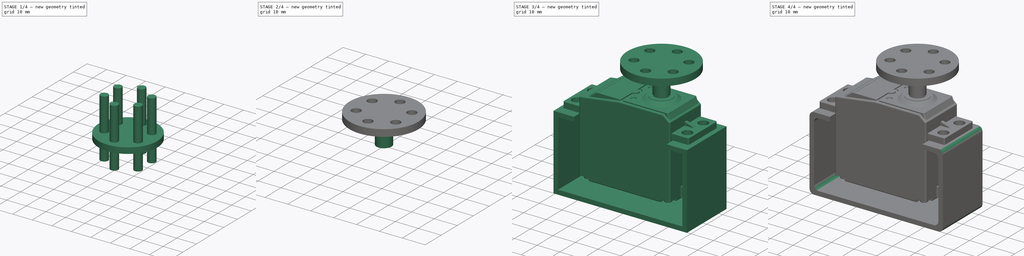
[diagram: build sequence overview — one tinted view per stage of 4, left to right]
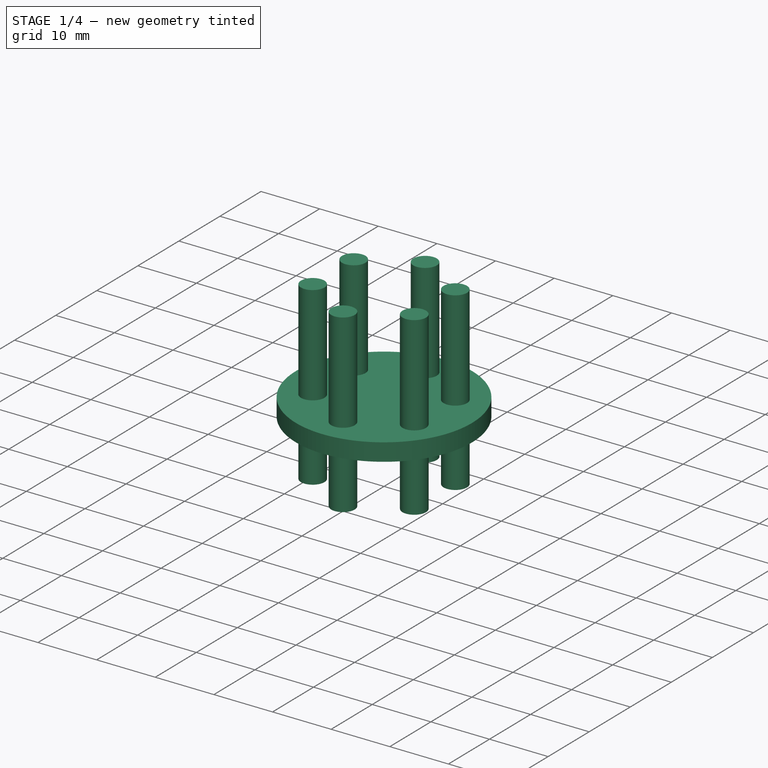
[diagram: stage 1 of 4 — iso view after this stage's code; geometry added in this stage tinted green]
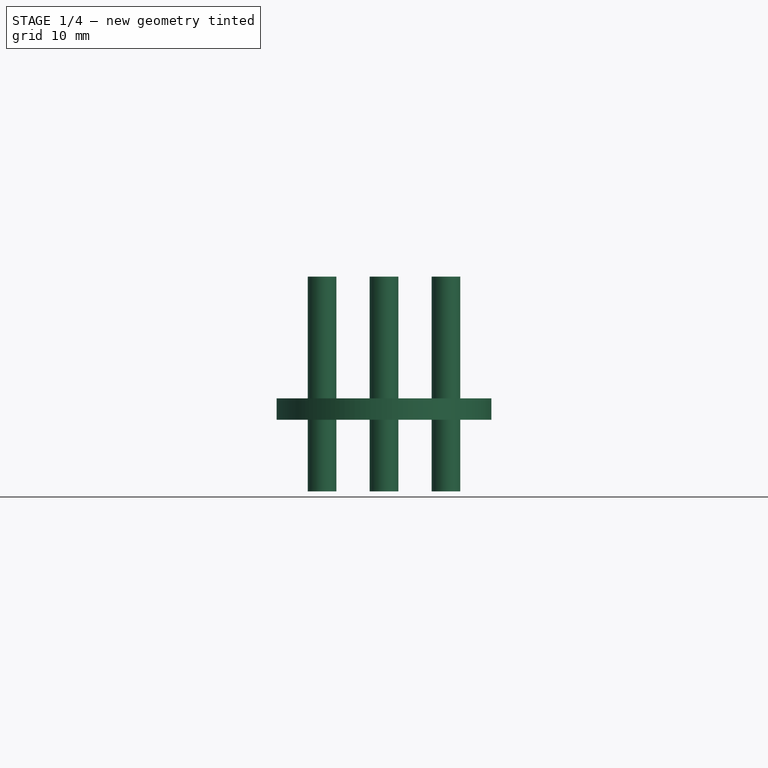
[diagram: stage 1 of 4 — front view after this stage's code; geometry added in this stage tinted green]
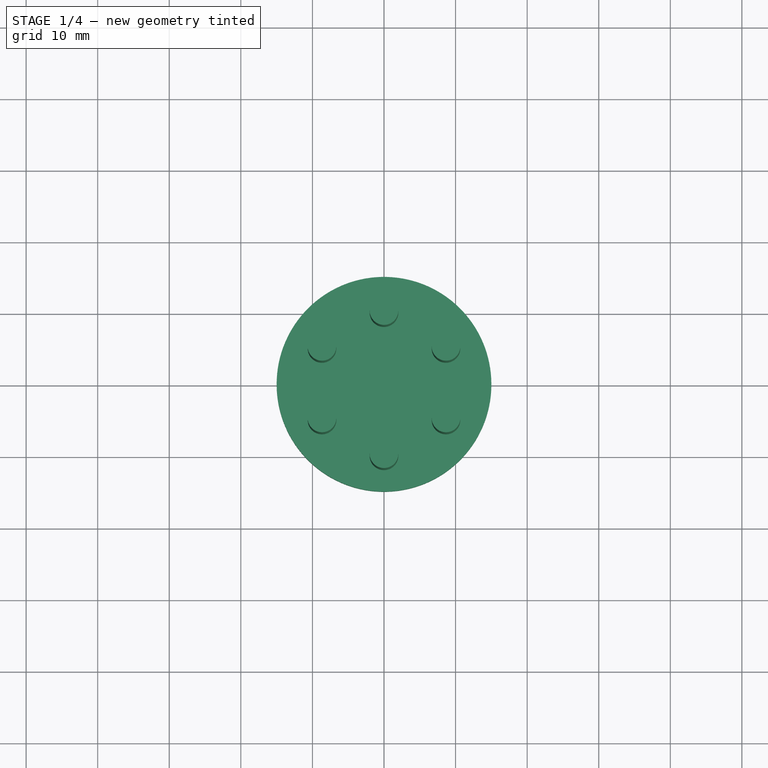
[diagram: stage 1 of 4 — top view after this stage's code; geometry added in this stage tinted green]
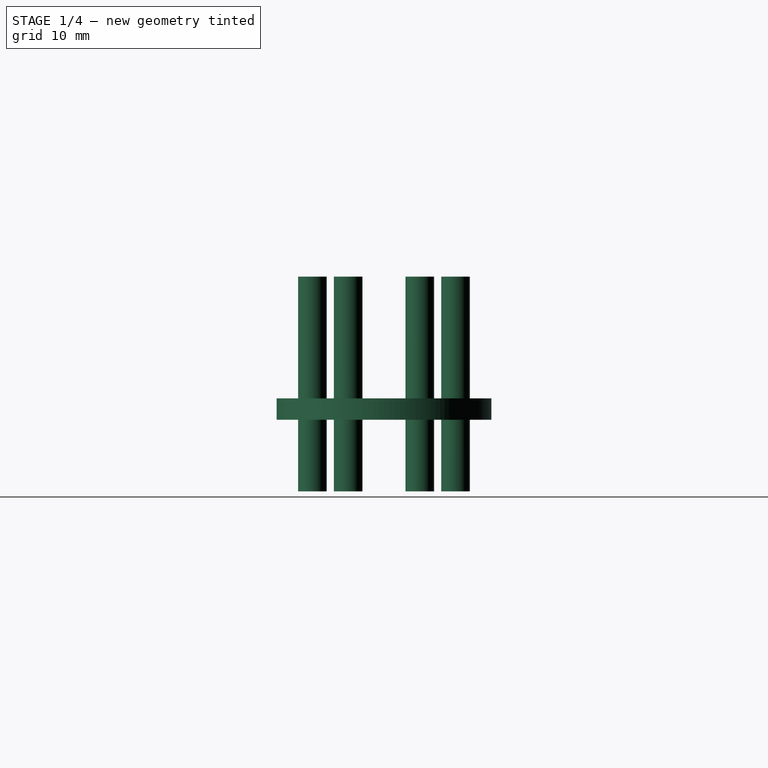
[diagram: stage 1 of 4 — right view after this stage's code; geometry added in this stage tinted green]
FCSTD DOCUMENT  (FreeCAD 0.17R7965 (Git))
Label: ConnectorRivet-Flat
License: All rights reserved
LicenseURL: http://en.wikipedia.org/wiki/All_rights_reserved
objects: Sketcher::SketchObject×4, Part::Extrusion×4, Part::FeaturePython×4, Part::Feature×1, Part::Cut×1, PartDesign::Body×1, Part::Fillet×1
note: 16 computed .brp shape members not serialized (recipe doc carries the construction recipe); baked Part::Feature solids carry a one-line shape summary decoded from their .brp

FEATURE [Part::Feature] Part__Feature  label="Servo-Futaba3003-final"
  Placement = pos=(-9.45,7.232e-09,0) rot=(0,0,1;0rad)
  shape: bbox 55.5 x 20 x 41.74 mm, 365 faces (baked)
FEATURE [Sketcher::SketchObject] Sketch001
  MapMode = 5
  Support = -> [XY_Plane]
  sketch-geometry (1):
    g0: Circle CenterX=0 CenterY=0 CenterZ=0 NormalX=0 NormalY=0 NormalZ=1 Radius=15
  constraints (2):
    c: Coincident(g0,g-1)
    c: Radius(g0) = 15
FEATURE [Part::Extrusion] Extrude002
  Base = -> Sketch001
  Dir = (0,0,3)
  Placement = pos=(0,0,10) rot=(0,0,1;0rad)
  Solid = true
FEATURE [Sketcher::SketchObject] Sketch002
  MapMode = 5
  Support = -> [XY_Plane]
  sketch-geometry (1):
    g0: Circle CenterX=0 CenterY=-10 CenterZ=0 NormalX=0 NormalY=0 NormalZ=1 Radius=2
  constraints (3):
    c: Radius(g0) = 2
    c: DistanceY(g-1,g0) = -10
    c: PointOnObject(g0,g-2)
FEATURE [Part::FeaturePython] Array  # Draft array (typed FeaturePython)
  Angle = 360
  ArrayType = 1
  Axis = (0,0,1)
  Base = -> Sketch002
  Center = (0,0,0)
  Fuse = false
  IntervalAxis = (0,0,0)
  IntervalX = (1,0,0)
  IntervalY = (0,1,0)
  IntervalZ = (0,0,0)
  NumberPolar = 6
  NumberX = 2
  NumberY = 2
  NumberZ = 1
FEATURE [Part::Extrusion] Extrude
  Base = -> Array
  Dir = (0,0,30)
  Solid = true
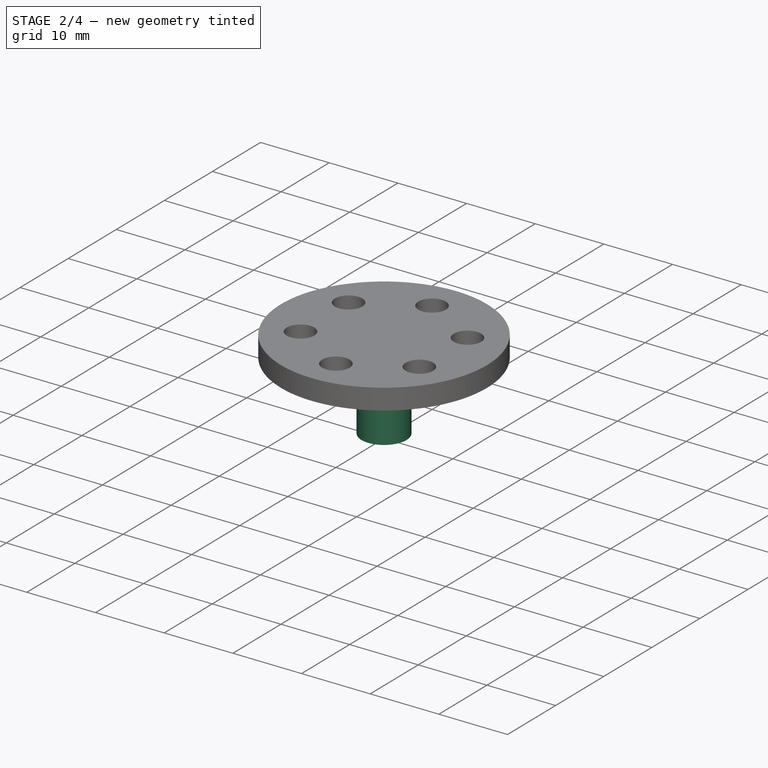
[diagram: stage 2 of 4 — iso view after this stage's code; geometry added in this stage tinted green]
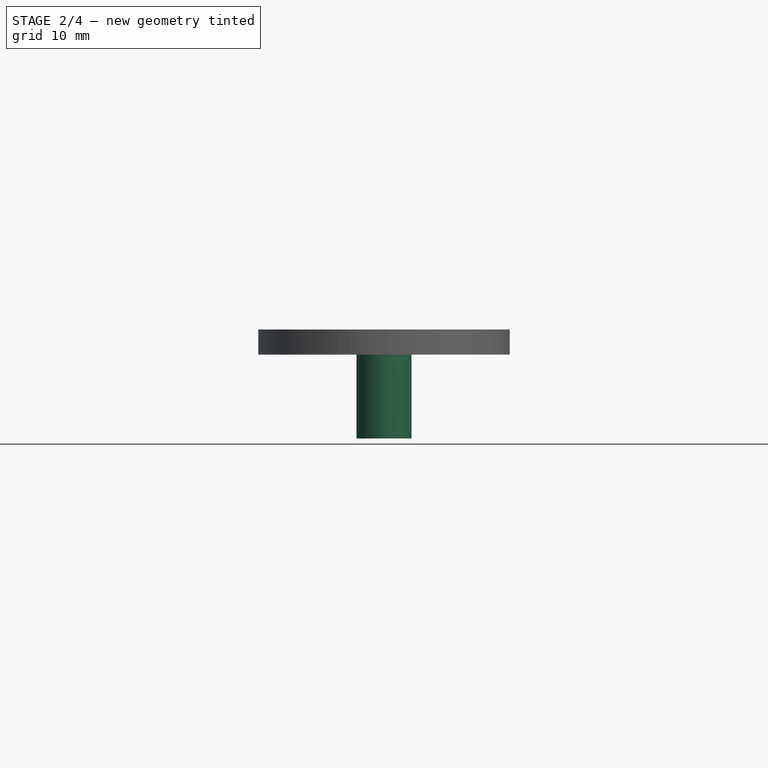
[diagram: stage 2 of 4 — front view after this stage's code; geometry added in this stage tinted green]
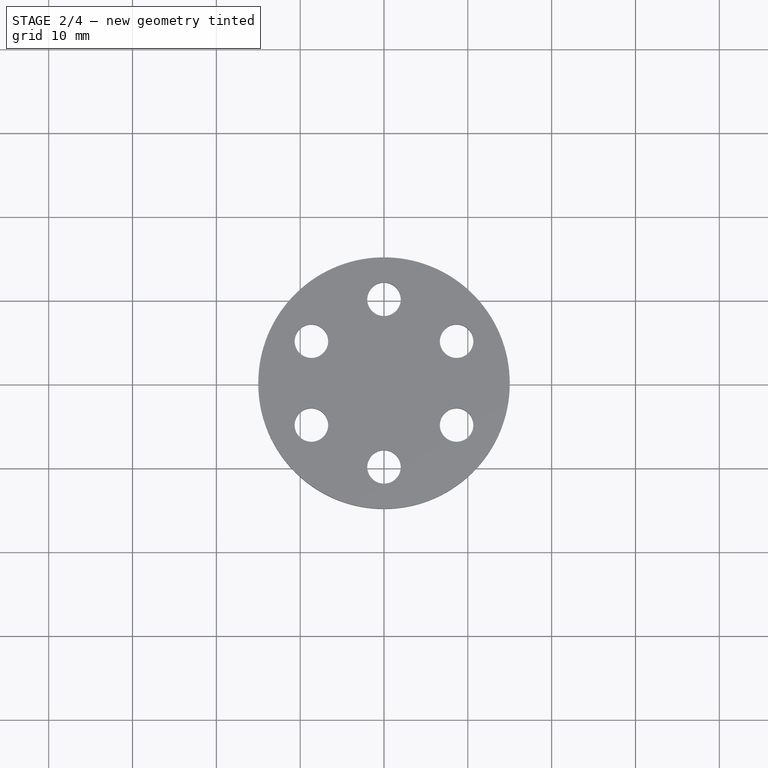
[diagram: stage 2 of 4 — top view after this stage's code; geometry added in this stage tinted green]
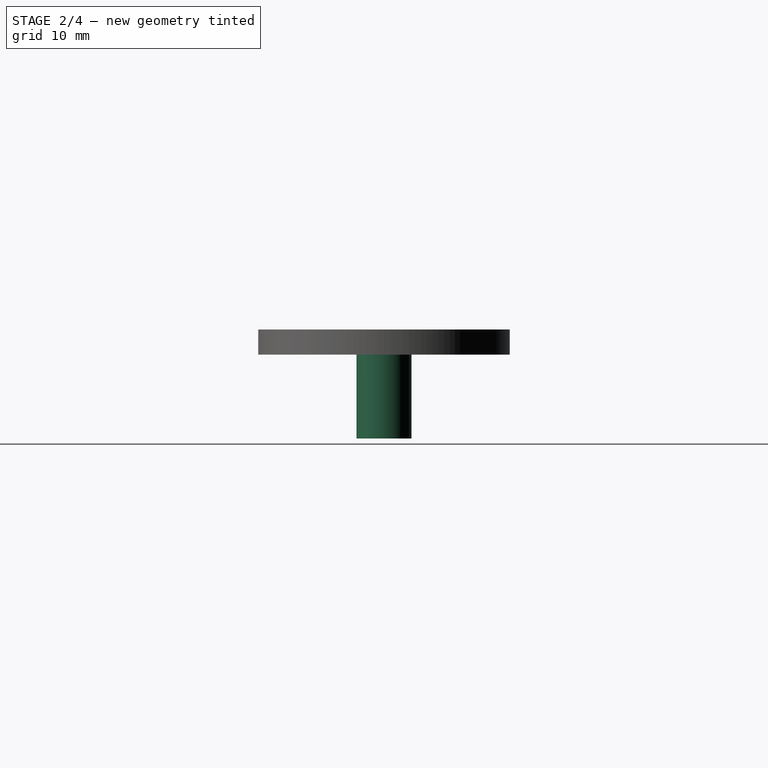
[diagram: stage 2 of 4 — right view after this stage's code; geometry added in this stage tinted green]
FEATURE [Sketcher::SketchObject] Sketch
  MapMode = 5
  Support = -> [XY_Plane]
  sketch-geometry (1):
    g0: Circle CenterX=0 CenterY=0 CenterZ=0 NormalX=0 NormalY=0 NormalZ=1 Radius=3.27463
  constraints (1):
    c: Coincident(g0,g-1)
FEATURE [Part::Extrusion] Extrude003
  Base = -> Sketch
  Dir = (0,0,10)
  Solid = true
FEATURE [Part::Cut] Cut
  Base = -> Extrude002
  Tool = -> Extrude
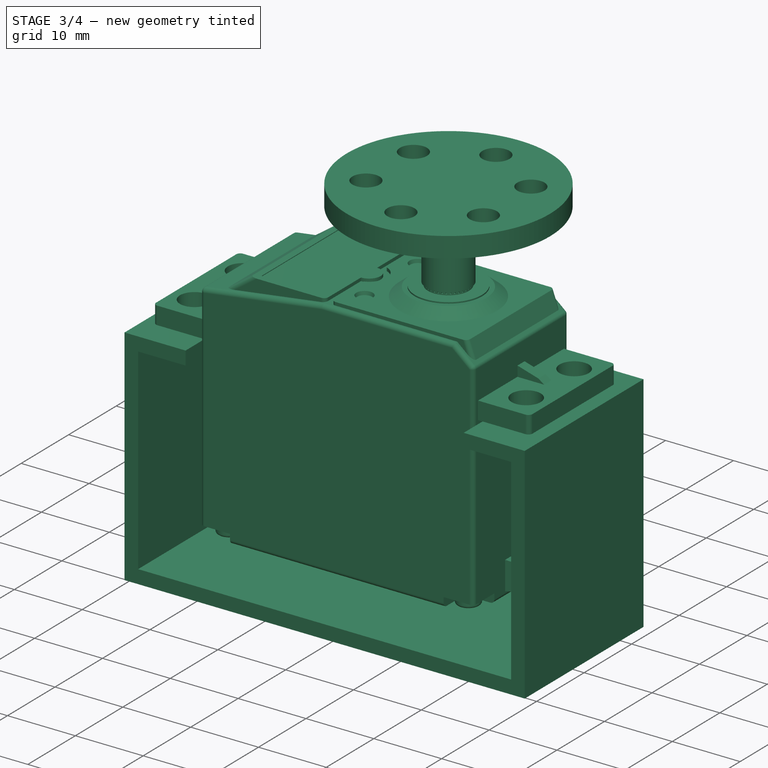
[diagram: stage 3 of 4 — iso view after this stage's code; geometry added in this stage tinted green]
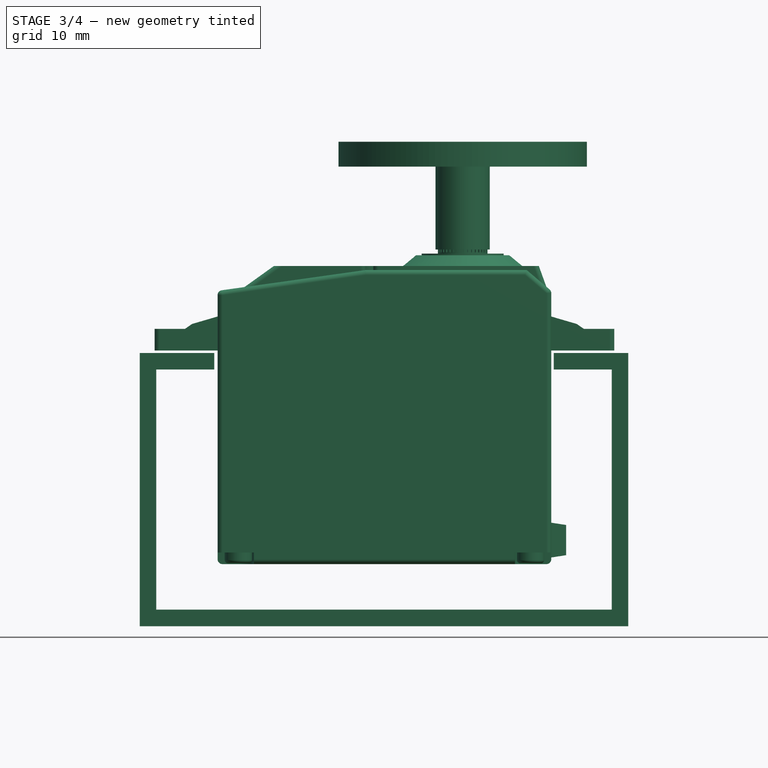
[diagram: stage 3 of 4 — front view after this stage's code; geometry added in this stage tinted green]
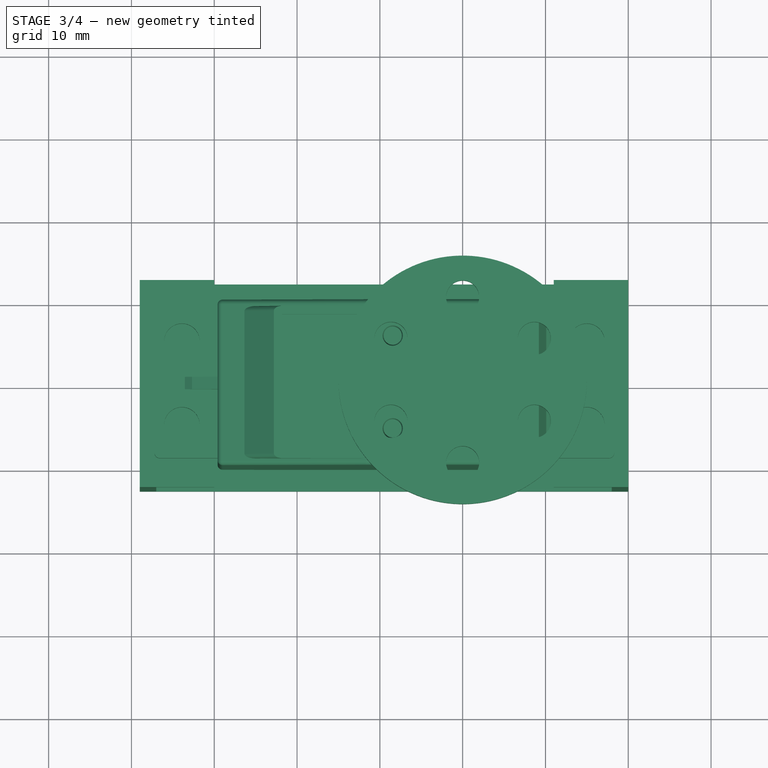
[diagram: stage 3 of 4 — top view after this stage's code; geometry added in this stage tinted green]
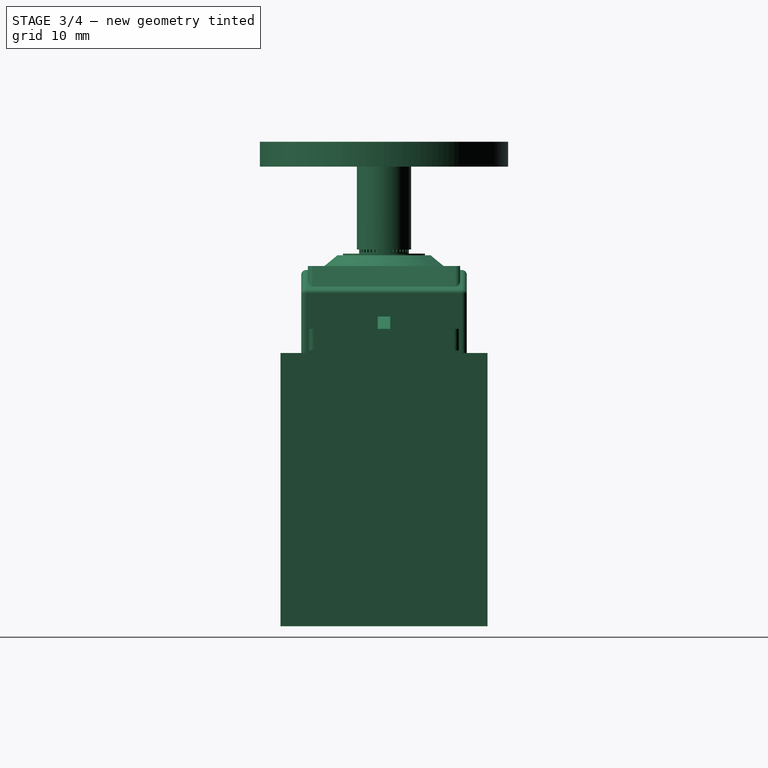
[diagram: stage 3 of 4 — right view after this stage's code; geometry added in this stage tinted green]
FEATURE [Part::FeaturePython] Connect  label="ServoConnector"  # WARN: FeaturePython — macro-defined, semantics opaque (R4)
  Base = -> Cut
  Mode = 1
  Placement = pos=(0,0,38) rot=(0,0,1;0rad)
  Tool = -> Extrude003
FEATURE [Sketcher::SketchObject] Sketch003
  MapMode = 5
  Placement = pos=(0,0,0) rot=(1,0,0;1.5708rad)
  Support = -> [XZ_Plane]
  sketch-geometry (12):
    g0: LineSegment StartX=-30 StartY=25.5 StartZ=0 EndX=-39 EndY=25.5 EndZ=0
    g1: LineSegment StartX=-39 StartY=25.5 StartZ=0 EndX=-39 EndY=-7.5 EndZ=0
    g2: LineSegment StartX=-39 StartY=-7.5 StartZ=0 EndX=20 EndY=-7.5 EndZ=0
    g3: LineSegment StartX=20 StartY=-7.5 StartZ=0 EndX=20 EndY=25.5 EndZ=0
    g4: LineSegment StartX=20 StartY=25.5 StartZ=0 EndX=11 EndY=25.5 EndZ=0
    g5: LineSegment StartX=11 StartY=25.5 StartZ=0 EndX=11 EndY=23.5 EndZ=0
    g6: LineSegment StartX=11 StartY=23.5 StartZ=0 EndX=18 EndY=23.5 EndZ=0
    g7: LineSegment StartX=18 StartY=23.5 StartZ=0 EndX=18 EndY=-5.5 EndZ=0
    g8: LineSegment StartX=18 StartY=-5.5 StartZ=0 EndX=-37 EndY=-5.5 EndZ=0
    g9: LineSegment StartX=-37 StartY=-5.5 StartZ=0 EndX=-37 EndY=23.5 EndZ=0
    g10: LineSegment StartX=-37 StartY=23.5 StartZ=0 EndX=-30 EndY=23.5 EndZ=0
    g11: LineSegment StartX=-30 StartY=23.5 StartZ=0 EndX=-30 EndY=25.5 EndZ=0
  constraints (36):
    c: Horizontal(g0)
    c: Coincident(g0,g1)
    c: Vertical(g1)
    c: Coincident(g1,g2)
    c: Horizontal(g2)
    c: Coincident(g2,g3)
    c: Vertical(g3)
    c: Coincident(g3,g4)
    c: Horizontal(g4)
    c: Coincident(g4,g5)
    c: Coincident(g5,g6)
    c: Horizontal(g6)
    c: Coincident(g6,g7)
    c: Vertical(g7)
    c: Coincident(g7,g8)
    c: Horizontal(g8)
    c: Coincident(g8,g9)
    c: Vertical(g9)
    c: Coincident(g9,g10)
    c: Horizontal(g10)
    c: Coincident(g10,g11)
    c: Coincident(g11,g0)
    c: Vertical(g11)
    c: Vertical(g5)
    c: Distance(g5) = 2
    c: Distance(g11) = 2
    c: Distance(g0) = 9
    c: Distance(g10) = 7
    c: Distance(g9) = 29
    c: Distance(g1) = 33
    c: Distance(g4) = 9
    c: Distance(g6) = 7
    c: Distance(g3) = 33
    c: Distance(g8) = 55
    c: DistanceX(g-2,g7) = 18
    c: Distance(g-1,g8) = 5.5
FEATURE [PartDesign::Body] Body
  Model = -> [Sketch001,Sketch,Sketch002,Sketch003]
  Origin = -> BodyOrigin
FEATURE [Part::Extrusion] Extrude004
  Base = -> Sketch003
  Dir = (0,25,0)
  Placement = pos=(0,-12.5,0) rot=(0,0,1;0rad)
  Solid = true
FEATURE [Part::FeaturePython] Connect001  # WARN: FeaturePython — macro-defined, semantics opaque (R4)
  Base = -> Connect
  Mode = 1
  Tool = -> Part__Feature
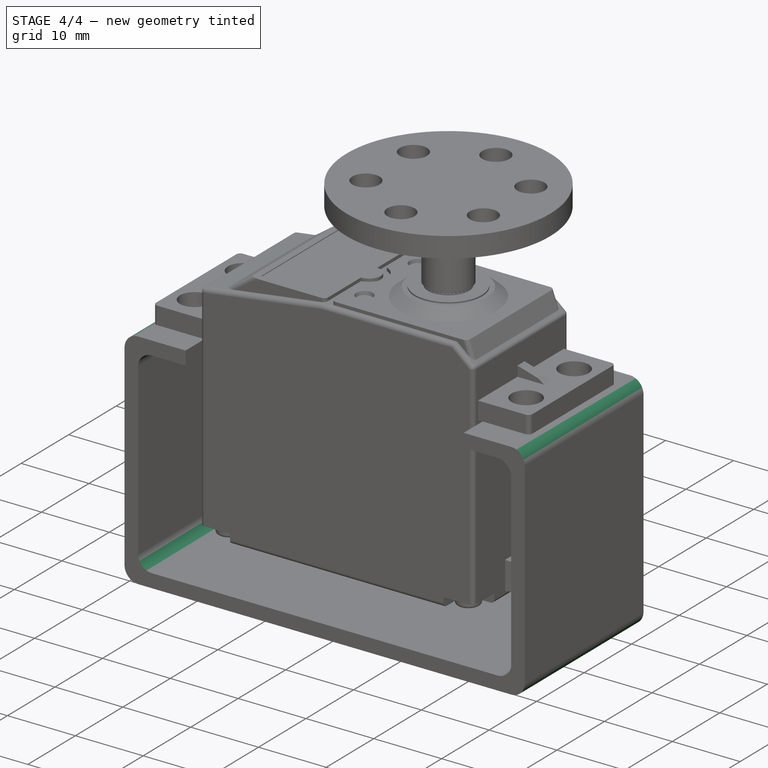
[diagram: stage 4 of 4 — iso view after this stage's code; geometry added in this stage tinted green]
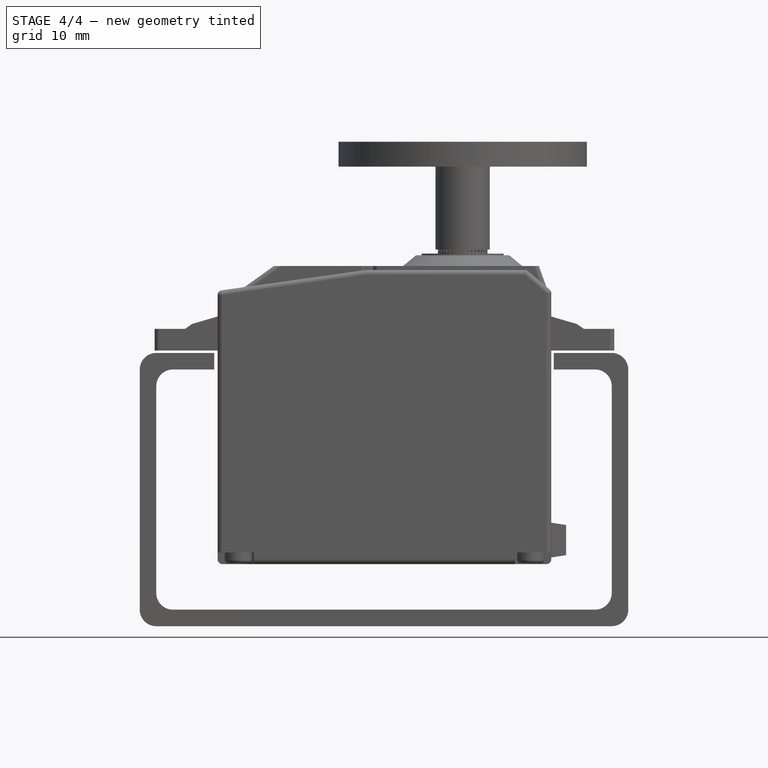
[diagram: stage 4 of 4 — front view after this stage's code; geometry added in this stage tinted green]
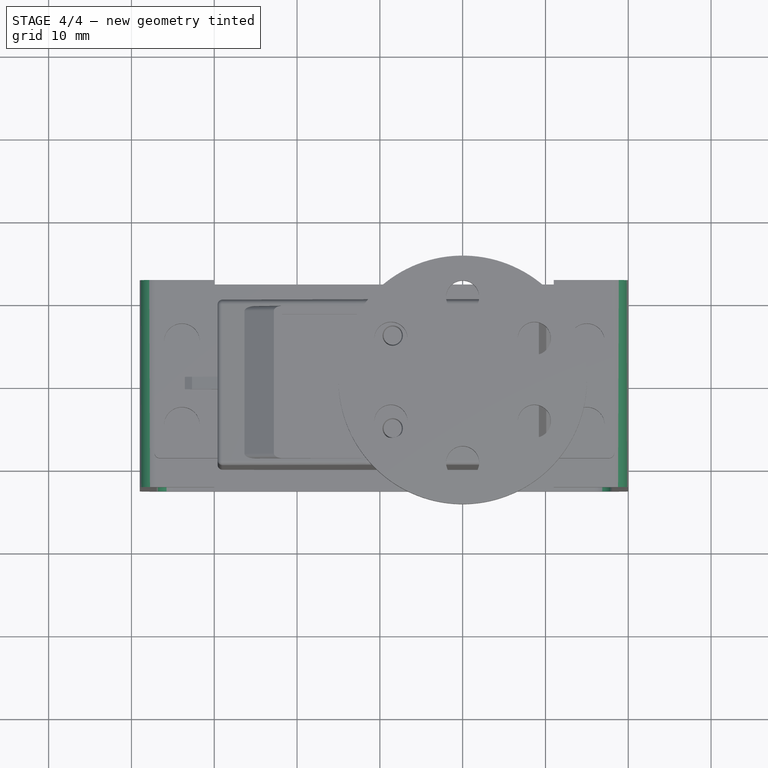
[diagram: stage 4 of 4 — top view after this stage's code; geometry added in this stage tinted green]
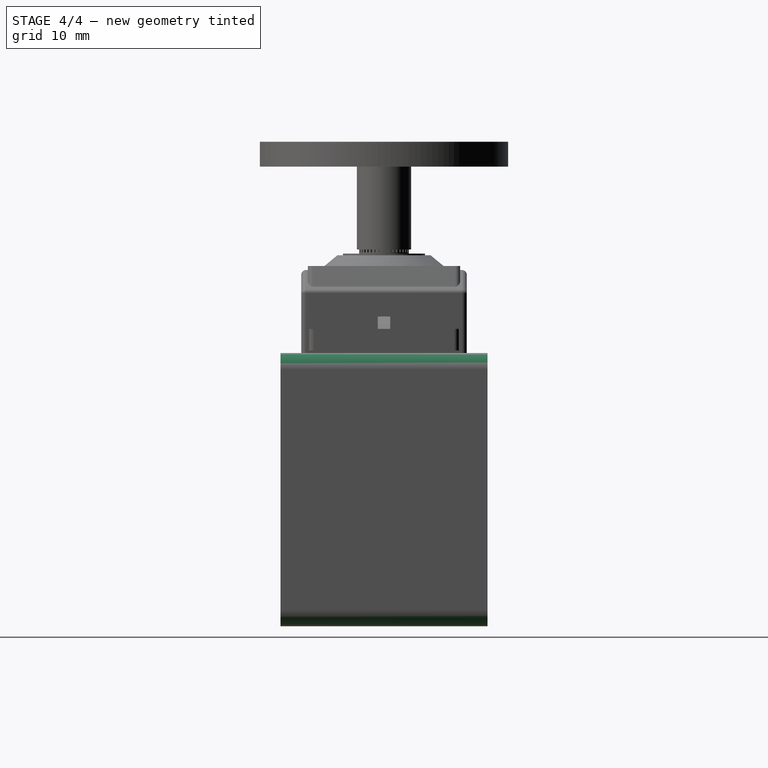
[diagram: stage 4 of 4 — right view after this stage's code; geometry added in this stage tinted green]
FEATURE [Part::Fillet] Fillet
  Base = -> Extrude004
  Edges = 8 edges r=2: [Edge2,Edge5,Edge8,Edge11,Edge20,Edge23,Edge26,Edge29]
FEATURE [Part::FeaturePython] Connect002  label="SingleConnect"  # WARN: FeaturePython — macro-defined, semantics opaque (R4)
  Base = -> Fillet
  Mode = 1
  Tool = -> Connect001
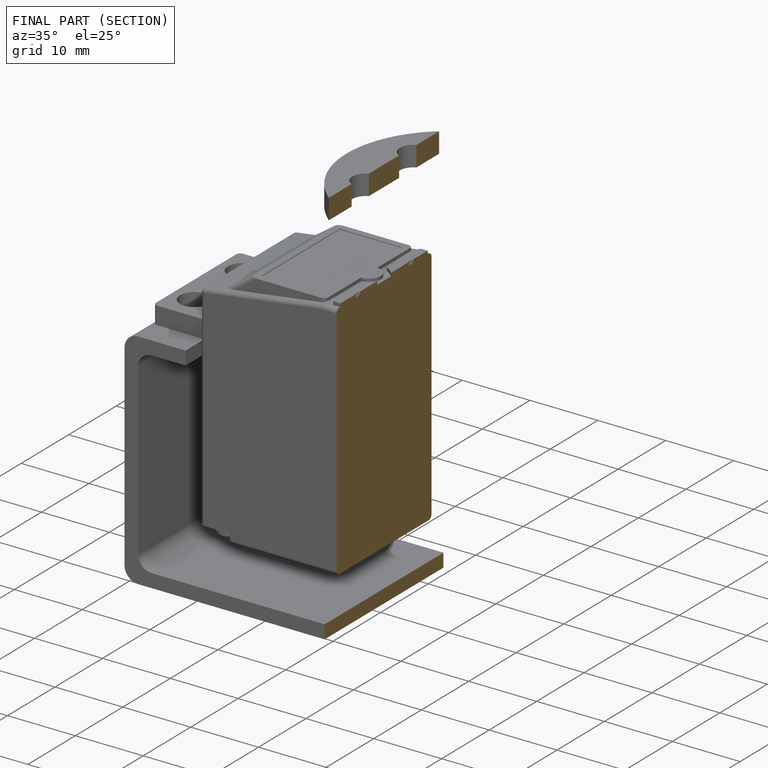
[diagram: finished part — half-section view (interior)]
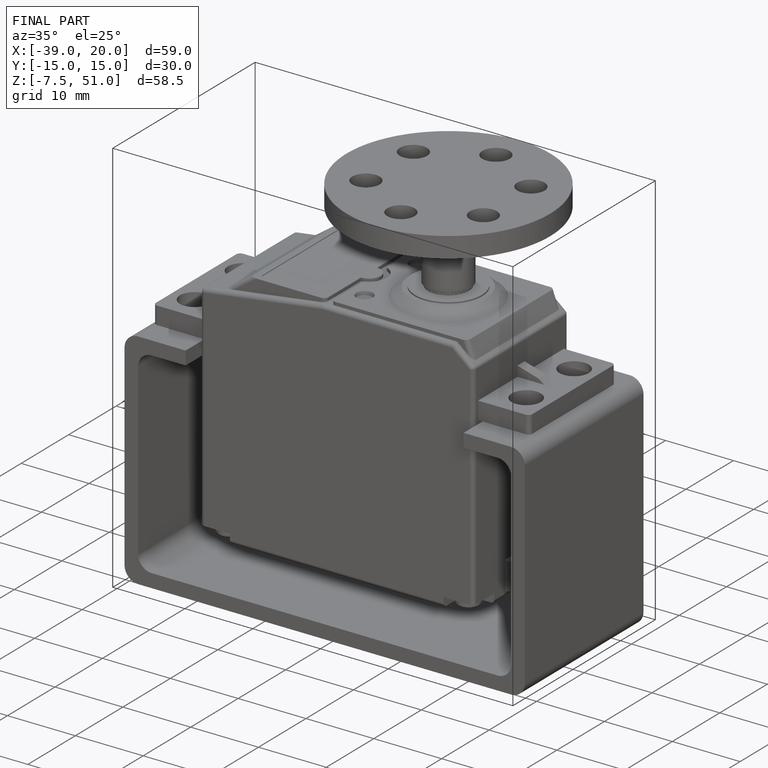
[diagram: finished part — iso view with bounding-box wireframe]
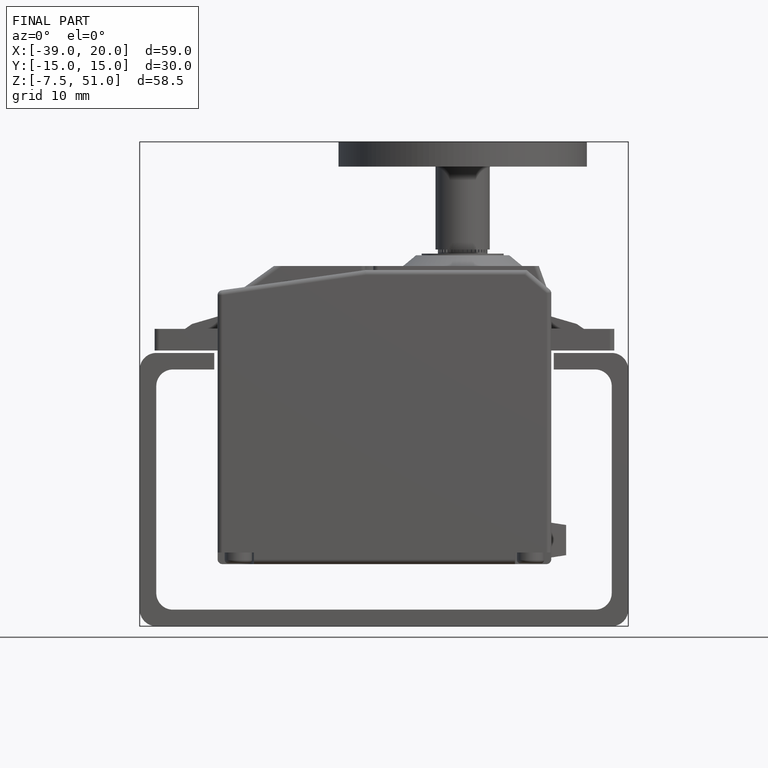
[diagram: finished part — front view with bounding-box wireframe]
